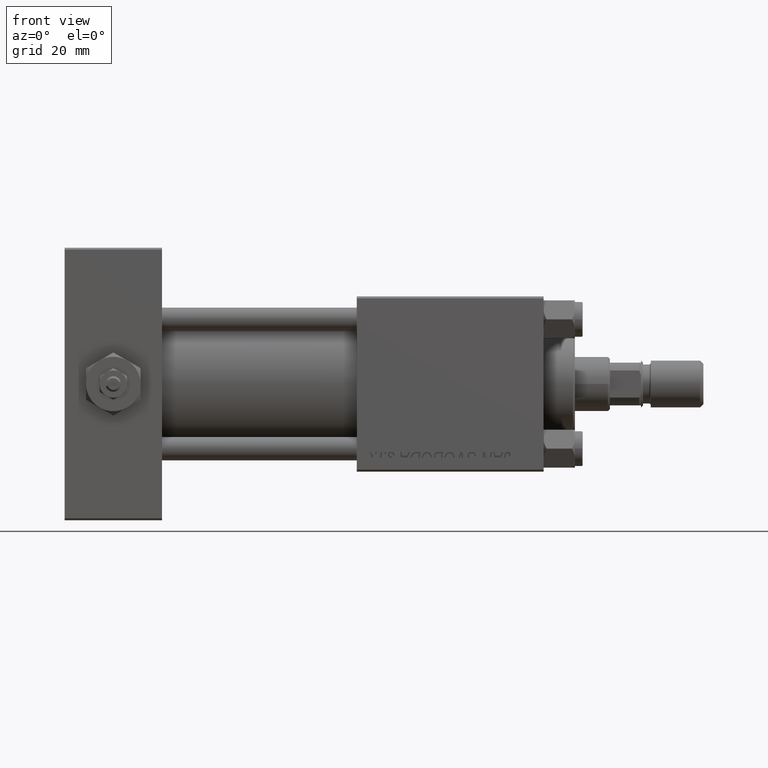
[diagram: clean part render]
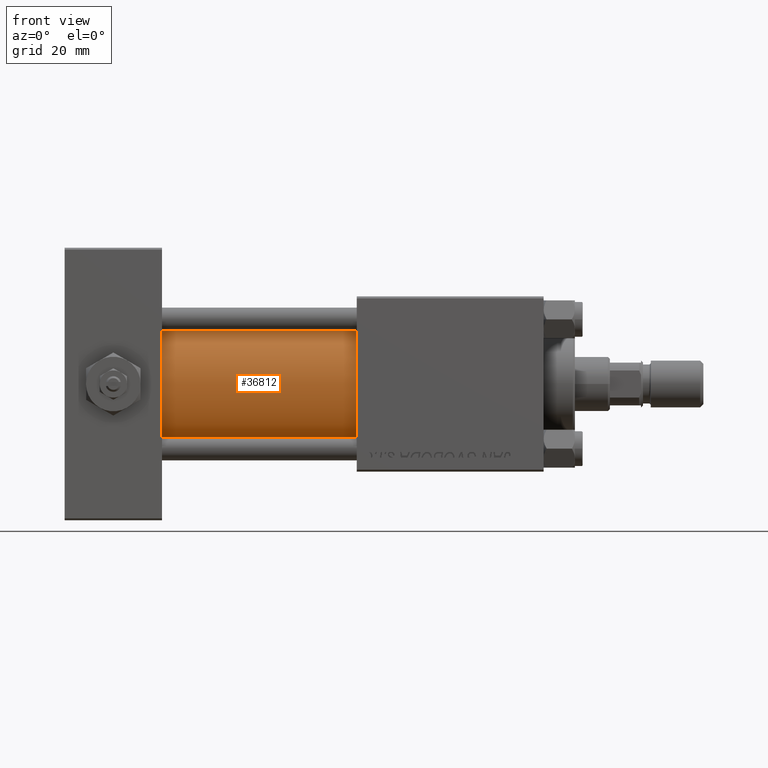
[diagram: same view with one face highlighted and labeled with its STEP entity id]
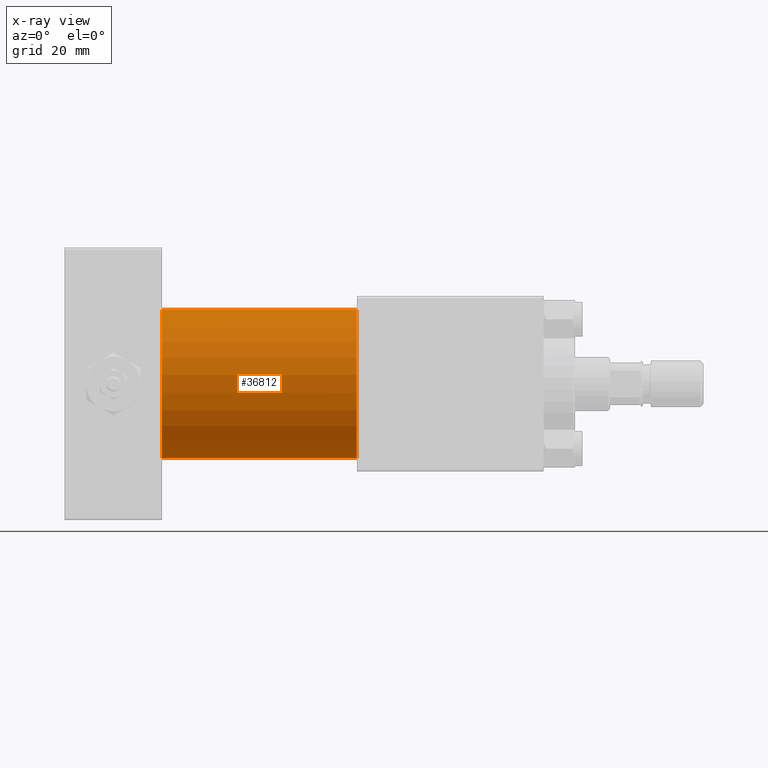
[diagram: x-ray of the same camera — body ghosted, the highlighted face saturated]
A machine part, front view. The second image highlights one B-rep face of the part: STEP entity #36812.
The next image is the same camera in x-ray: the body ghosted, the highlighted face saturated — about 0% of this face is hidden behind the body in this view.
In plain terms, the highlighted cylindrical surface (partial cylindrical patch) has radius 19 mm, axis along (-1, -0, -0).
Its self-contained STEP definition (entity closure, byte-faithful):
#663 = LINE ( 'NONE', #13053, #32561 ) ;
#5300 = ORIENTED_EDGE ( 'NONE', *, *, #34427, .F. ) ;
#6585 = CARTESIAN_POINT ( 'NONE',  ( 25.00000000000000000, -2.602085213965210642E-15, 0.000000000000000000 ) ) ;
#8417 = AXIS2_PLACEMENT_3D ( 'NONE', #13779, #41739, #21694 ) ;
#9090 = CARTESIAN_POINT ( 'NONE',  ( 75.00000000000001421, -2.752562955852396712E-16, -19.00000000000000000 ) ) ;
#9412 = VECTOR ( 'NONE', #11796, 1000.000000000000000 ) ;
#9899 = DIRECTION ( 'NONE',  ( -1.000000000000000000, -0.000000000000000000, -0.000000000000000000 ) ) ;
#11796 = DIRECTION ( 'NONE',  ( -1.000000000000000000, -0.000000000000000000, -0.000000000000000000 ) ) ;
#13053 = CARTESIAN_POINT ( 'NONE',  ( 75.00000000000001421, -2.752562955852396712E-16, -19.00000000000000000 ) ) ;
#13779 = CARTESIAN_POINT ( 'NONE',  ( 75.00000000000001421, -2.602085213965210642E-15, 0.000000000000000000 ) ) ;
#15502 = VERTEX_POINT ( 'NONE', #9090 ) ;
#16646 = AXIS2_PLACEMENT_3D ( 'NONE', #44994, #9899, #18066 ) ;
#16761 = CYLINDRICAL_SURFACE ( 'NONE', #16646, 19.00000000000000000 ) ;
#17594 = EDGE_CURVE ( 'NONE', #21158, #38405, #51651, .T. ) ;
#18066 = DIRECTION ( 'NONE',  ( 0.000000000000000000, 0.000000000000000000, 1.000000000000000000 ) ) ;
#19235 = DIRECTION ( 'NONE',  ( 0.000000000000000000, 0.000000000000000000, 1.000000000000000000 ) ) ;
#20721 = FACE_OUTER_BOUND ( 'NONE', #23377, .T. ) ;
#21158 = VERTEX_POINT ( 'NONE', #45136 ) ;
#21694 = DIRECTION ( 'NONE',  ( 0.000000000000000000, 0.000000000000000000, -1.000000000000000000 ) ) ;
#23377 = EDGE_LOOP ( 'NONE', ( #5300, #44780, #35489, #33075 ) ) ;
#23560 = CIRCLE ( 'NONE', #8417, 19.00000000000000000 ) ;
#23958 = VERTEX_POINT ( 'NONE', #28270 ) ;
#26890 = DIRECTION ( 'NONE',  ( 1.000000000000000000, -0.000000000000000000, 0.000000000000000000 ) ) ;
#28263 = CIRCLE ( 'NONE', #50176, 19.00000000000000000 ) ;
#28270 = CARTESIAN_POINT ( 'NONE',  ( 25.00000000000000000, -2.752562955852396712E-16, -19.00000000000000000 ) ) ;
#31441 = EDGE_CURVE ( 'NONE', #38405, #23958, #28263, .T. ) ;
#32561 = VECTOR ( 'NONE', #32833, 1000.000000000000000 ) ;
#32833 = DIRECTION ( 'NONE',  ( -1.000000000000000000, -0.000000000000000000, -0.000000000000000000 ) ) ;
#33075 = ORIENTED_EDGE ( 'NONE', *, *, #31441, .T. ) ;
#34427 = EDGE_CURVE ( 'NONE', #15502, #23958, #663, .T. ) ;
#35489 = ORIENTED_EDGE ( 'NONE', *, *, #17594, .T. ) ;
#36035 = CARTESIAN_POINT ( 'NONE',  ( 75.00000000000001421, -2.602085213965210642E-15, 19.00000000000000000 ) ) ;
#36812 = ADVANCED_FACE ( 'NONE', ( #20721 ), #16761, .T. ) ;
#38405 = VERTEX_POINT ( 'NONE', #48347 ) ;
#41739 = DIRECTION ( 'NONE',  ( 1.000000000000000000, 0.000000000000000000, 0.000000000000000000 ) ) ;
#44780 = ORIENTED_EDGE ( 'NONE', *, *, #50990, .F. ) ;
#44994 = CARTESIAN_POINT ( 'NONE',  ( 75.00000000000001421, -2.602085213965210642E-15, 0.000000000000000000 ) ) ;
#45136 = CARTESIAN_POINT ( 'NONE',  ( 75.00000000000001421, -2.602085213965210642E-15, 19.00000000000000000 ) ) ;
#48347 = CARTESIAN_POINT ( 'NONE',  ( 25.00000000000000000, -2.602085213965210642E-15, 19.00000000000000000 ) ) ;
#50176 = AXIS2_PLACEMENT_3D ( 'NONE', #6585, #26890, #19235 ) ;
#50990 = EDGE_CURVE ( 'NONE', #21158, #15502, #23560, .T. ) ;
#51651 = LINE ( 'NONE', #36035, #9412 ) ;